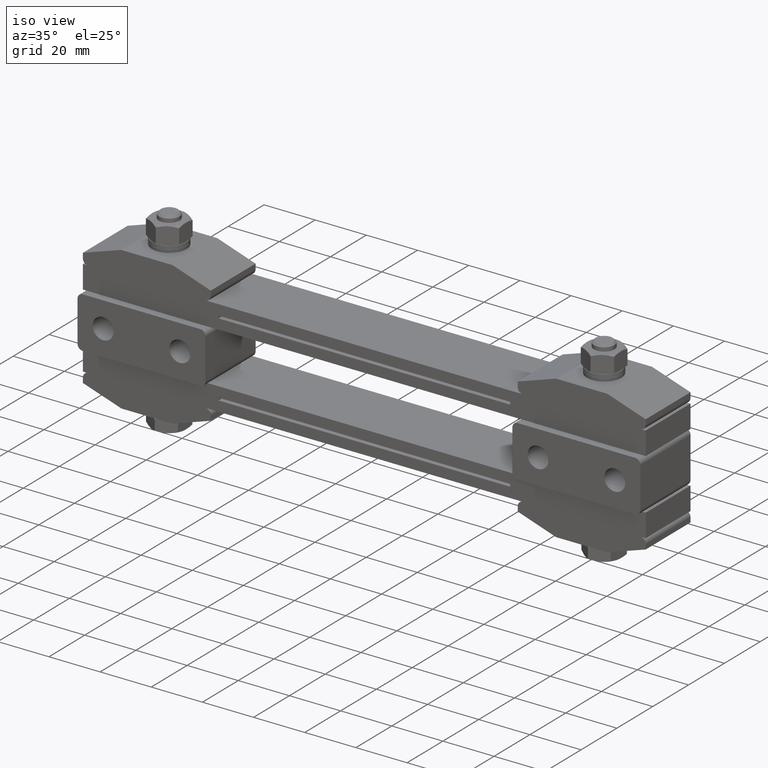
[diagram: clean part render]
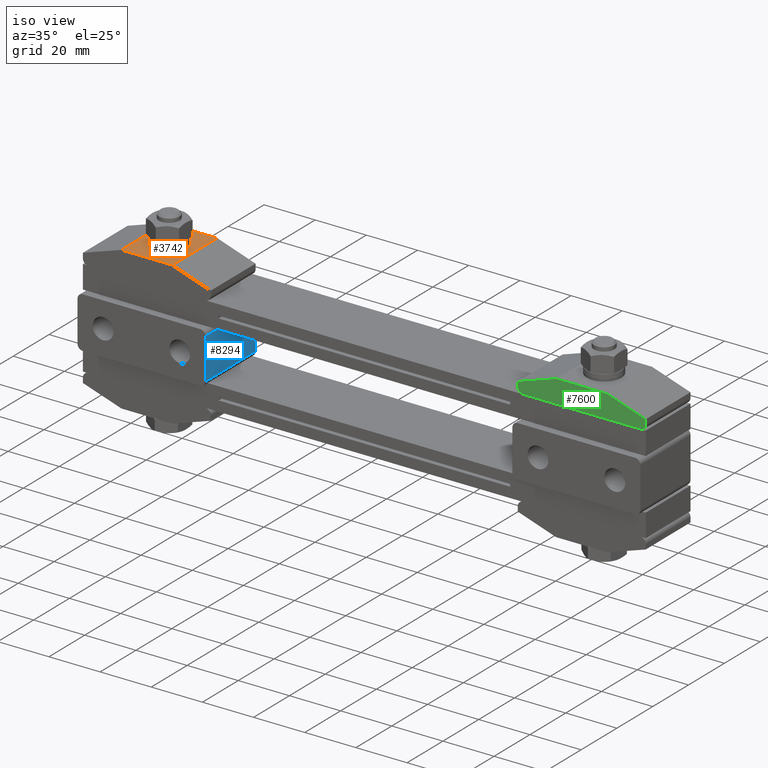
[diagram: same view with three faces highlighted in distinct colors, each labeled with its STEP entity id]
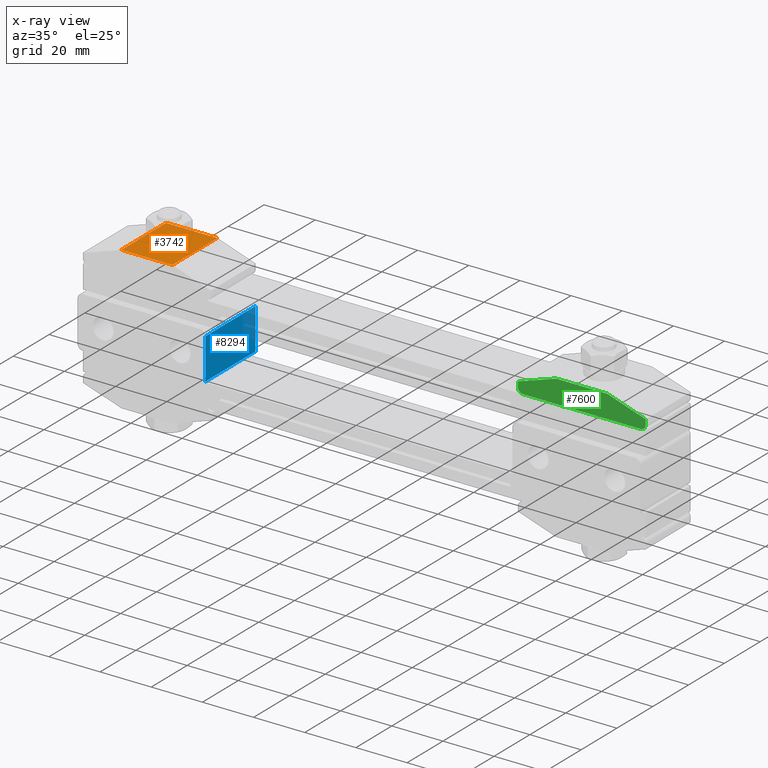
[diagram: x-ray of the same camera — body ghosted, the three highlighted faces saturated]
A machine part, iso view with three faces highlighted in distinct colors.
The next image is the same camera in x-ray (body ghosted, the three faces saturated) — at least one of them is partly hidden behind the body in this view.
Their STEP definitions:

[orange] entity #3742 — the highlighted planar face has unit normal (-0, -0, -1).
#180 = ORIENTED_EDGE ( 'NONE', *, *, #2290, .T. ) ;
#1146 = LINE ( 'NONE', #5394, #22414 ) ;
#1383 = DIRECTION ( 'NONE',  ( 5.519574696289830600E-017, 1.000000000000000000, -4.040289502454684500E-018 ) ) ;
#1413 = DIRECTION ( 'NONE',  ( -1.387778780781446000E-017, -4.040289502454684500E-018, -1.000000000000000000 ) ) ;
#1490 = LINE ( 'NONE', #12929, #11435 ) ;
#1693 = DIRECTION ( 'NONE',  ( 1.000000000000000000, -5.519574696289830600E-017, -1.387778780781446000E-017 ) ) ;
#1725 = ORIENTED_EDGE ( 'NONE', *, *, #15189, .T. ) ;
#2290 = EDGE_CURVE ( 'NONE', #16984, #18537, #13105, .T. ) ;
#2347 = CARTESIAN_POINT ( 'NONE',  ( -85.00000000000000000, -2.927345865710849700E-015, 42.00000000000000000 ) ) ;
#2934 = CARTESIAN_POINT ( 'NONE',  ( -89.10000000000000900, -3.221329793574424900E-015, 42.00000000000000000 ) ) ;
#3215 = VERTEX_POINT ( 'NONE', #6248 ) ;
#3742 = ADVANCED_FACE ( 'NONE', ( #11610, #8325 ), #22807, .F. ) ;
#4100 = DIRECTION ( 'NONE',  ( -1.387778780781446000E-017, -4.040289502454684500E-018, -1.000000000000000000 ) ) ;
#4977 = CARTESIAN_POINT ( 'NONE',  ( -95.00000000000000000, 12.50000000000000000, 42.00000000000000000 ) ) ;
#5364 = ORIENTED_EDGE ( 'NONE', *, *, #11007, .T. ) ;
#5394 = CARTESIAN_POINT ( 'NONE',  ( -110.0000000000000000, 12.50000000000000000, 42.00000000000000000 ) ) ;
#6059 = VECTOR ( 'NONE', #13606, 1000.000000000000000 ) ;
#6248 = CARTESIAN_POINT ( 'NONE',  ( -75.00000000000000000, 12.50000000000000000, 42.00000000000000000 ) ) ;
#8298 = VERTEX_POINT ( 'NONE', #16478 ) ;
#8325 = FACE_OUTER_BOUND ( 'NONE', #11502, .T. ) ;
#8817 = EDGE_CURVE ( 'NONE', #18537, #16984, #16513, .T. ) ;
#9788 = LINE ( 'NONE', #10102, #11966 ) ;
#10102 = CARTESIAN_POINT ( 'NONE',  ( -75.00000000000000000, 12.50000000000000000, 42.00000000000000000 ) ) ;
#10278 = CARTESIAN_POINT ( 'NONE',  ( -85.00000000000000000, -2.927345865710849700E-015, 42.00000000000000000 ) ) ;
#10590 = ORIENTED_EDGE ( 'NONE', *, *, #19126, .F. ) ;
#10721 = LINE ( 'NONE', #4977, #6059 ) ;
#11007 = EDGE_CURVE ( 'NONE', #18406, #3215, #9788, .T. ) ;
#11008 = DIRECTION ( 'NONE',  ( -1.000000000000000000, 5.519574696289830600E-017, 1.387778780781446000E-017 ) ) ;
#11435 = VECTOR ( 'NONE', #11008, 1000.000000000000000 ) ;
#11502 = EDGE_LOOP ( 'NONE', ( #10590, #1725, #16564, #5364 ) ) ;
#11610 = FACE_BOUND ( 'NONE', #18296, .T. ) ;
#11910 = VERTEX_POINT ( 'NONE', #12840 ) ;
#11966 = VECTOR ( 'NONE', #1383, 1000.000000000000000 ) ;
#12840 = CARTESIAN_POINT ( 'NONE',  ( -95.00000000000000000, -12.50000000000000000, 42.00000000000000000 ) ) ;
#12859 = AXIS2_PLACEMENT_3D ( 'NONE', #10278, #1413, #15446 ) ;
#12929 = CARTESIAN_POINT ( 'NONE',  ( -110.0000000000000000, -12.50000000000000000, 42.00000000000000000 ) ) ;
#13105 = CIRCLE ( 'NONE', #12859, 4.100000000000006800 ) ;
#13606 = DIRECTION ( 'NONE',  ( -5.519574696289830600E-017, -1.000000000000000000, 4.040289502454684500E-018 ) ) ;
#14648 = CARTESIAN_POINT ( 'NONE',  ( -75.00000000000000000, -12.50000000000000000, 42.00000000000000000 ) ) ;
#15189 = EDGE_CURVE ( 'NONE', #8298, #11910, #10721, .T. ) ;
#15446 = DIRECTION ( 'NONE',  ( 1.000000000000000000, -5.519574696289818900E-017, 0.0000000000000000000 ) ) ;
#15895 = DIRECTION ( 'NONE',  ( -1.387778780781446000E-017, -4.040289502454684500E-018, -1.000000000000000000 ) ) ;
#15949 = AXIS2_PLACEMENT_3D ( 'NONE', #17521, #15895, #17678 ) ;
#16478 = CARTESIAN_POINT ( 'NONE',  ( -95.00000000000000000, 12.50000000000000000, 42.00000000000000000 ) ) ;
#16513 = CIRCLE ( 'NONE', #22082, 4.100000000000006800 ) ;
#16564 = ORIENTED_EDGE ( 'NONE', *, *, #20966, .F. ) ;
#16984 = VERTEX_POINT ( 'NONE', #20370 ) ;
#17521 = CARTESIAN_POINT ( 'NONE',  ( -110.0000000000000000, 12.50000000000000000, 42.00000000000000000 ) ) ;
#17678 = DIRECTION ( 'NONE',  ( 1.000000000000000000, -5.519574696289830600E-017, -1.387778780781446000E-017 ) ) ;
#18296 = EDGE_LOOP ( 'NONE', ( #180, #21040 ) ) ;
#18406 = VERTEX_POINT ( 'NONE', #14648 ) ;
#18537 = VERTEX_POINT ( 'NONE', #2934 ) ;
#19126 = EDGE_CURVE ( 'NONE', #8298, #3215, #1146, .T. ) ;
#20370 = CARTESIAN_POINT ( 'NONE',  ( -80.90000000000000600, -3.153648428258732500E-015, 42.00000000000000000 ) ) ;
#20966 = EDGE_CURVE ( 'NONE', #18406, #11910, #1490, .T. ) ;
#21040 = ORIENTED_EDGE ( 'NONE', *, *, #8817, .T. ) ;
#21878 = DIRECTION ( 'NONE',  ( 1.000000000000000000, -5.519574696289818900E-017, 0.0000000000000000000 ) ) ;
#22082 = AXIS2_PLACEMENT_3D ( 'NONE', #2347, #4100, #21878 ) ;
#22414 = VECTOR ( 'NONE', #1693, 1000.000000000000000 ) ;
#22807 = PLANE ( 'NONE',  #15949 ) ;

[blue] entity #8294 — the highlighted planar face has unit normal (-1, 0, 0).
#114 = CARTESIAN_POINT ( 'NONE',  ( -60.00000000000000000, 12.50000000000000000, 22.00000000000000000 ) ) ;
#432 = LINE ( 'NONE', #114, #15589 ) ;
#751 = VERTEX_POINT ( 'NONE', #15516 ) ;
#942 = CARTESIAN_POINT ( 'NONE',  ( -60.00000000000000000, 12.50000000000000000, 4.000000000000000000 ) ) ;
#1449 = CARTESIAN_POINT ( 'NONE',  ( -60.00000000000000000, -15.50000000000000000, 22.00000000000000000 ) ) ;
#1961 = EDGE_CURVE ( 'NONE', #6347, #21188, #432, .T. ) ;
#2250 = VECTOR ( 'NONE', #5649, 1000.000000000000000 ) ;
#3846 = DIRECTION ( 'NONE',  ( 0.0000000000000000000, 0.0000000000000000000, 1.000000000000000000 ) ) ;
#5091 = ORIENTED_EDGE ( 'NONE', *, *, #1961, .T. ) ;
#5241 = FACE_OUTER_BOUND ( 'NONE', #12590, .T. ) ;
#5649 = DIRECTION ( 'NONE',  ( 0.0000000000000000000, 0.0000000000000000000, 1.000000000000000000 ) ) ;
#6347 = VERTEX_POINT ( 'NONE', #7733 ) ;
#6941 = LINE ( 'NONE', #942, #2250 ) ;
#7733 = CARTESIAN_POINT ( 'NONE',  ( -60.00000000000000000, 12.50000000000000000, 22.00000000000000000 ) ) ;
#7866 = EDGE_CURVE ( 'NONE', #751, #6347, #6941, .T. ) ;
#8294 = ADVANCED_FACE ( 'NONE', ( #5241 ), #18275, .F. ) ;
#8937 = DIRECTION ( 'NONE',  ( -5.551115123125779600E-017, 1.000000000000000000, -0.0000000000000000000 ) ) ;
#9628 = DIRECTION ( 'NONE',  ( -1.000000000000000000, 5.551115123125779600E-017, 0.0000000000000000000 ) ) ;
#10086 = EDGE_CURVE ( 'NONE', #14833, #751, #16459, .T. ) ;
#10628 = EDGE_CURVE ( 'NONE', #14833, #21188, #18924, .T. ) ;
#10998 = CARTESIAN_POINT ( 'NONE',  ( -60.00000000000000000, -15.50000000000000000, 6.000000000000000000 ) ) ;
#12590 = EDGE_LOOP ( 'NONE', ( #14868, #19973, #22499, #5091 ) ) ;
#14833 = VERTEX_POINT ( 'NONE', #10998 ) ;
#14868 = ORIENTED_EDGE ( 'NONE', *, *, #10628, .F. ) ;
#15516 = CARTESIAN_POINT ( 'NONE',  ( -60.00000000000000000, 12.50000000000000000, 6.000000000000000000 ) ) ;
#15589 = VECTOR ( 'NONE', #16227, 1000.000000000000000 ) ;
#15904 = VECTOR ( 'NONE', #8937, 1000.000000000000000 ) ;
#16227 = DIRECTION ( 'NONE',  ( 5.551115123125779600E-017, -1.000000000000000000, 0.0000000000000000000 ) ) ;
#16459 = LINE ( 'NONE', #19348, #15904 ) ;
#17509 = CARTESIAN_POINT ( 'NONE',  ( -60.00000000000000000, -15.50000000000000000, 4.000000000000000000 ) ) ;
#18196 = DIRECTION ( 'NONE',  ( 0.0000000000000000000, 0.0000000000000000000, 1.000000000000000000 ) ) ;
#18275 = PLANE ( 'NONE',  #20131 ) ;
#18924 = LINE ( 'NONE', #17509, #19179 ) ;
#19179 = VECTOR ( 'NONE', #3846, 1000.000000000000000 ) ;
#19348 = CARTESIAN_POINT ( 'NONE',  ( -60.00000000000000000, 12.50000000000000000, 6.000000000000000000 ) ) ;
#19973 = ORIENTED_EDGE ( 'NONE', *, *, #10086, .T. ) ;
#20131 = AXIS2_PLACEMENT_3D ( 'NONE', #20187, #9628, #18196 ) ;
#20187 = CARTESIAN_POINT ( 'NONE',  ( -60.00000000000000000, 12.50000000000000000, 4.000000000000000000 ) ) ;
#21188 = VERTEX_POINT ( 'NONE', #1449 ) ;
#22499 = ORIENTED_EDGE ( 'NONE', *, *, #7866, .T. ) ;

[green] entity #7600 — the highlighted planar face has unit normal (0, 1, 0).
#369 = AXIS2_PLACEMENT_3D ( 'NONE', #7816, #16649, #7902 ) ;
#375 = CIRCLE ( 'NONE', #17235, 2.000000000000001800 ) ;
#577 = ORIENTED_EDGE ( 'NONE', *, *, #12053, .T. ) ;
#885 = VERTEX_POINT ( 'NONE', #17619 ) ;
#1088 = VERTEX_POINT ( 'NONE', #22115 ) ;
#1491 = CARTESIAN_POINT ( 'NONE',  ( 103.8000000000000000, -12.50000000000000000, 51.60000000000000100 ) ) ;
#2022 = VERTEX_POINT ( 'NONE', #3669 ) ;
#2183 = DIRECTION ( 'NONE',  ( 0.0000000000000000000, 0.0000000000000000000, -1.000000000000000000 ) ) ;
#2704 = EDGE_CURVE ( 'NONE', #21680, #9076, #375, .T. ) ;
#2957 = DIRECTION ( 'NONE',  ( -1.000000000000000000, 2.775557561562890400E-016, 0.0000000000000000000 ) ) ;
#2975 = ORIENTED_EDGE ( 'NONE', *, *, #11959, .T. ) ;
#3495 = ORIENTED_EDGE ( 'NONE', *, *, #18669, .T. ) ;
#3669 = CARTESIAN_POINT ( 'NONE',  ( 110.0000000000000000, -12.50000000000000000, 37.00000000000000000 ) ) ;
#4728 = EDGE_CURVE ( 'NONE', #885, #9076, #16428, .T. ) ;
#5159 = VERTEX_POINT ( 'NONE', #8106 ) ;
#6131 = EDGE_CURVE ( 'NONE', #1088, #16901, #12499, .T. ) ;
#6219 = CARTESIAN_POINT ( 'NONE',  ( 111.1999999999999900, -12.50000000000000000, 36.60000000000000100 ) ) ;
#6411 = EDGE_CURVE ( 'NONE', #5159, #2022, #8583, .T. ) ;
#7600 = ADVANCED_FACE ( 'NONE', ( #22278 ), #13113, .F. ) ;
#7816 = CARTESIAN_POINT ( 'NONE',  ( 110.0000000000000000, -12.50000000000000000, 33.00000000000000000 ) ) ;
#7853 = VECTOR ( 'NONE', #13875, 1000.000000000000000 ) ;
#7902 = DIRECTION ( 'NONE',  ( 0.0000000000000000000, 0.0000000000000000000, -1.000000000000000000 ) ) ;
#8106 = CARTESIAN_POINT ( 'NONE',  ( 110.0000000000000000, -12.50000000000000000, 35.00000000000000000 ) ) ;
#8369 = VECTOR ( 'NONE', #21900, 999.9999999999998900 ) ;
#8583 = LINE ( 'NONE', #13181, #9962 ) ;
#9076 = VERTEX_POINT ( 'NONE', #16994 ) ;
#9123 = DIRECTION ( 'NONE',  ( -2.775557561562890400E-016, -1.000000000000000000, -0.0000000000000000000 ) ) ;
#9261 = LINE ( 'NONE', #14262, #14189 ) ;
#9962 = VECTOR ( 'NONE', #14803, 1000.000000000000000 ) ;
#10285 = ORIENTED_EDGE ( 'NONE', *, *, #6411, .T. ) ;
#10332 = CARTESIAN_POINT ( 'NONE',  ( 110.0000000000000000, -12.50000000000000000, 42.00000000000000000 ) ) ;
#11323 = EDGE_CURVE ( 'NONE', #21680, #12876, #9261, .T. ) ;
#11328 = EDGE_LOOP ( 'NONE', ( #18242, #17327, #22665, #577, #10285, #2975, #11876, #3495 ) ) ;
#11876 = ORIENTED_EDGE ( 'NONE', *, *, #6131, .T. ) ;
#11959 = EDGE_CURVE ( 'NONE', #2022, #1088, #14988, .T. ) ;
#12053 = EDGE_CURVE ( 'NONE', #885, #5159, #20913, .T. ) ;
#12499 = LINE ( 'NONE', #10332, #7853 ) ;
#12641 = DIRECTION ( 'NONE',  ( 0.0000000000000000000, 0.0000000000000000000, 1.000000000000000000 ) ) ;
#12876 = VERTEX_POINT ( 'NONE', #15873 ) ;
#13113 = PLANE ( 'NONE',  #369 ) ;
#13181 = CARTESIAN_POINT ( 'NONE',  ( 110.0000000000000000, -12.50000000000000000, 33.00000000000000000 ) ) ;
#13500 = CARTESIAN_POINT ( 'NONE',  ( 110.0000000000000000, -12.50000000000000000, 33.00000000000000000 ) ) ;
#13852 = VECTOR ( 'NONE', #19305, 999.9999999999998900 ) ;
#13875 = DIRECTION ( 'NONE',  ( -1.000000000000000000, 2.775557561562890400E-016, 0.0000000000000000000 ) ) ;
#14189 = VECTOR ( 'NONE', #12641, 1000.000000000000000 ) ;
#14262 = CARTESIAN_POINT ( 'NONE',  ( 60.00000000000000000, -12.50000000000000000, 33.00000000000000000 ) ) ;
#14688 = LINE ( 'NONE', #1491, #13852 ) ;
#14769 = DIRECTION ( 'NONE',  ( 0.0000000000000000000, 0.0000000000000000000, -1.000000000000000000 ) ) ;
#14803 = DIRECTION ( 'NONE',  ( 0.0000000000000000000, 0.0000000000000000000, 1.000000000000000000 ) ) ;
#14988 = LINE ( 'NONE', #6219, #8369 ) ;
#15873 = CARTESIAN_POINT ( 'NONE',  ( 60.00000000000000000, -12.50000000000000000, 37.00000000000000000 ) ) ;
#16428 = LINE ( 'NONE', #13500, #20833 ) ;
#16649 = DIRECTION ( 'NONE',  ( 2.775557561562890400E-016, 1.000000000000000000, 0.0000000000000000000 ) ) ;
#16901 = VERTEX_POINT ( 'NONE', #18376 ) ;
#16994 = CARTESIAN_POINT ( 'NONE',  ( 62.00000000000000000, -12.50000000000000000, 33.00000000000000000 ) ) ;
#17235 = AXIS2_PLACEMENT_3D ( 'NONE', #19749, #9123, #2183 ) ;
#17327 = ORIENTED_EDGE ( 'NONE', *, *, #2704, .T. ) ;
#17376 = AXIS2_PLACEMENT_3D ( 'NONE', #20098, #21822, #14769 ) ;
#17619 = CARTESIAN_POINT ( 'NONE',  ( 108.0000000000000000, -12.50000000000000000, 33.00000000000000000 ) ) ;
#18242 = ORIENTED_EDGE ( 'NONE', *, *, #11323, .F. ) ;
#18376 = CARTESIAN_POINT ( 'NONE',  ( 75.00000000000000000, -12.50000000000000000, 42.00000000000000000 ) ) ;
#18669 = EDGE_CURVE ( 'NONE', #16901, #12876, #14688, .T. ) ;
#19305 = DIRECTION ( 'NONE',  ( -0.9486832980505137700, 2.633125101432525300E-016, -0.3162277660168380000 ) ) ;
#19749 = CARTESIAN_POINT ( 'NONE',  ( 62.00000000000000000, -12.50000000000000000, 35.00000000000000000 ) ) ;
#20098 = CARTESIAN_POINT ( 'NONE',  ( 108.0000000000000000, -12.50000000000000000, 35.00000000000000000 ) ) ;
#20833 = VECTOR ( 'NONE', #2957, 1000.000000000000000 ) ;
#20913 = CIRCLE ( 'NONE', #17376, 2.000000000000001800 ) ;
#21680 = VERTEX_POINT ( 'NONE', #22231 ) ;
#21822 = DIRECTION ( 'NONE',  ( -2.775557561562890400E-016, -1.000000000000000000, -0.0000000000000000000 ) ) ;
#21900 = DIRECTION ( 'NONE',  ( -0.9486832980505137700, 2.633125101432525300E-016, 0.3162277660168380000 ) ) ;
#22115 = CARTESIAN_POINT ( 'NONE',  ( 95.00000000000000000, -12.50000000000000000, 42.00000000000000000 ) ) ;
#22231 = CARTESIAN_POINT ( 'NONE',  ( 60.00000000000000000, -12.50000000000000000, 35.00000000000000000 ) ) ;
#22278 = FACE_OUTER_BOUND ( 'NONE', #11328, .T. ) ;
#22665 = ORIENTED_EDGE ( 'NONE', *, *, #4728, .F. ) ;